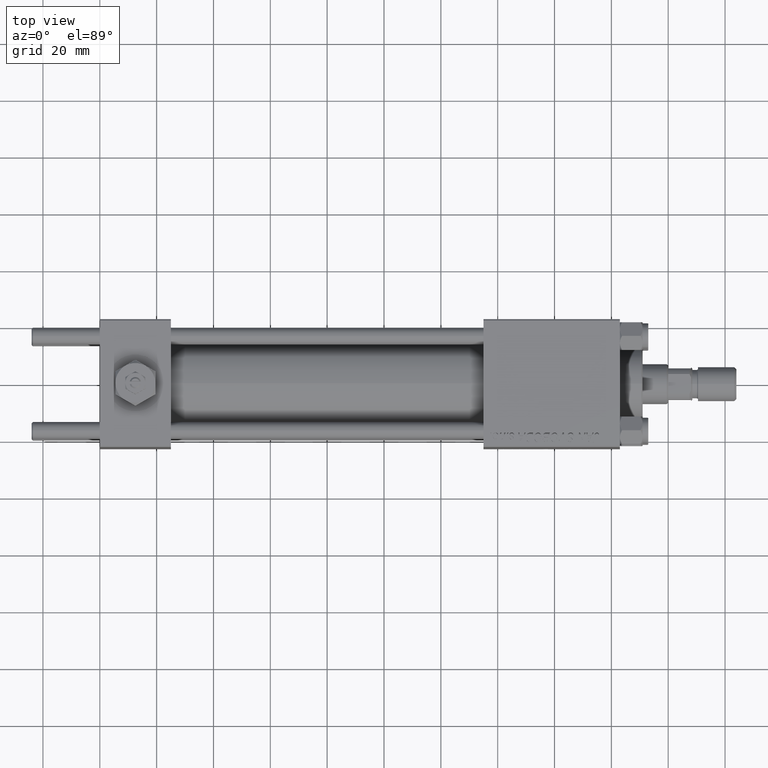
[diagram: clean part render]
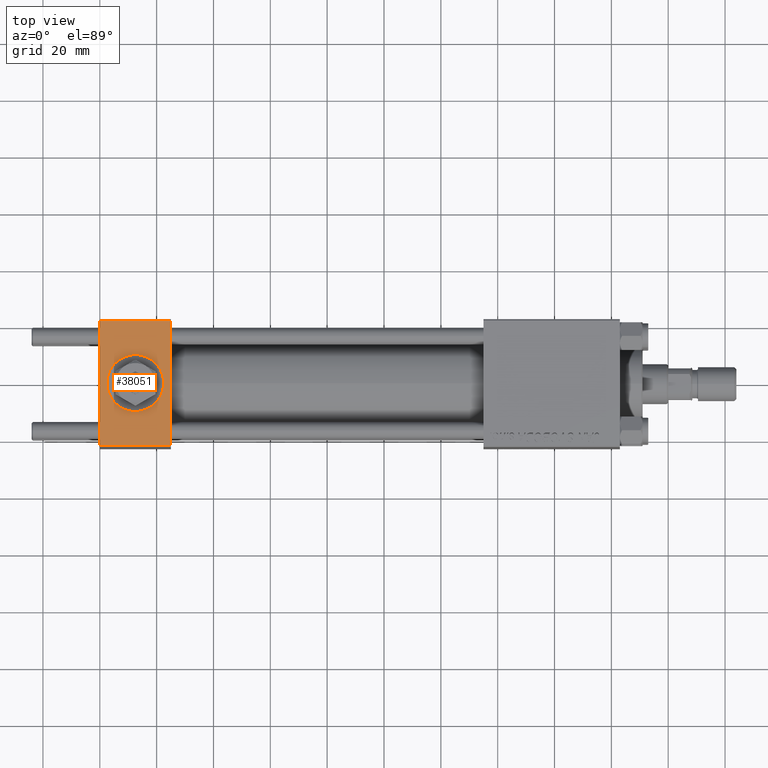
[diagram: same view with one face highlighted and labeled with its STEP entity id]
A machine part, top view. The second image highlights one B-rep face of the part: STEP entity #38051.
In plain terms, the highlighted planar face has unit normal (0, 0, -1).
Its self-contained STEP definition (entity closure, byte-faithful):
#146 = VERTEX_POINT ( 'NONE', #9226 ) ;
#447 = VECTOR ( 'NONE', #21025, 1000.000000000000000 ) ;
#496 = CARTESIAN_POINT ( 'NONE',  ( 25.00000000000000000, 22.50000000000000000, 22.50000000000000355 ) ) ;
#1013 = LINE ( 'NONE', #17580, #447 ) ;
#1362 = AXIS2_PLACEMENT_3D ( 'NONE', #35577, #31624, #47678 ) ;
#2153 = ORIENTED_EDGE ( 'NONE', *, *, #31511, .F. ) ;
#3281 = EDGE_LOOP ( 'NONE', ( #3507, #42439 ) ) ;
#3408 = FACE_BOUND ( 'NONE', #3281, .T. ) ;
#3507 = ORIENTED_EDGE ( 'NONE', *, *, #30375, .F. ) ;
#4366 = ORIENTED_EDGE ( 'NONE', *, *, #8892, .T. ) ;
#4749 = CARTESIAN_POINT ( 'NONE',  ( 22.50000000000000000, -1.734723475976807094E-15, 22.50000000000000000 ) ) ;
#5336 = DIRECTION ( 'NONE',  ( 0.000000000000000000, -1.000000000000000000, -7.709882115452476934E-17 ) ) ;
#7519 = CARTESIAN_POINT ( 'NONE',  ( 12.50000000000000000, -1.734723475976807094E-15, 22.50000000000000000 ) ) ;
#8425 = DIRECTION ( 'NONE',  ( 1.000000000000000000, 0.000000000000000000, 0.000000000000000000 ) ) ;
#8892 = EDGE_CURVE ( 'NONE', #22160, #20146, #40814, .T. ) ;
#9226 = CARTESIAN_POINT ( 'NONE',  ( 2.500000000000003997, -5.100766768294543310E-16, 22.50000000000000000 ) ) ;
#9365 = CARTESIAN_POINT ( 'NONE',  ( 25.00000000000000000, 21.99999999999999289, 22.50000000000000355 ) ) ;
#13503 = LINE ( 'NONE', #13756, #24456 ) ;
#13756 = CARTESIAN_POINT ( 'NONE',  ( 0.000000000000000000, 22.50000000000000000, 22.50000000000000355 ) ) ;
#15111 = CIRCLE ( 'NONE', #35307, 9.999999999999998224 ) ;
#16296 = LINE ( 'NONE', #496, #26524 ) ;
#17580 = CARTESIAN_POINT ( 'NONE',  ( 0.000000000000000000, 21.99999999999999289, 22.50000000000000355 ) ) ;
#19340 = CARTESIAN_POINT ( 'NONE',  ( 0.000000000000000000, -21.99999999999997868, 22.50000000000000000 ) ) ;
#20146 = VERTEX_POINT ( 'NONE', #32126 ) ;
#21025 = DIRECTION ( 'NONE',  ( -1.000000000000000000, 0.000000000000000000, 0.000000000000000000 ) ) ;
#22160 = VERTEX_POINT ( 'NONE', #19340 ) ;
#22650 = CARTESIAN_POINT ( 'NONE',  ( 25.00000000000000000, 22.50000000000000000, 22.50000000000000355 ) ) ;
#24057 = CIRCLE ( 'NONE', #1362, 9.999999999999998224 ) ;
#24456 = VECTOR ( 'NONE', #5336, 1000.000000000000000 ) ;
#25789 = VERTEX_POINT ( 'NONE', #34287 ) ;
#25988 = VERTEX_POINT ( 'NONE', #4749 ) ;
#26524 = VECTOR ( 'NONE', #32364, 1000.000000000000000 ) ;
#29476 = CARTESIAN_POINT ( 'NONE',  ( 25.00000000000000000, -21.99999999999999289, 22.50000000000000000 ) ) ;
#30299 = PLANE ( 'NONE',  #47635 ) ;
#30375 = EDGE_CURVE ( 'NONE', #25988, #146, #24057, .T. ) ;
#31209 = ORIENTED_EDGE ( 'NONE', *, *, #31676, .T. ) ;
#31511 = EDGE_CURVE ( 'NONE', #47992, #20146, #16296, .T. ) ;
#31624 = DIRECTION ( 'NONE',  ( 0.000000000000000000, 0.000000000000000000, 1.000000000000000000 ) ) ;
#31676 = EDGE_CURVE ( 'NONE', #47992, #25789, #1013, .T. ) ;
#32126 = CARTESIAN_POINT ( 'NONE',  ( 25.00000000000000000, -21.99999999999997868, 22.50000000000000000 ) ) ;
#32364 = DIRECTION ( 'NONE',  ( 0.000000000000000000, -1.000000000000000000, -7.709882115452476934E-17 ) ) ;
#32741 = VECTOR ( 'NONE', #8425, 1000.000000000000000 ) ;
#34287 = CARTESIAN_POINT ( 'NONE',  ( 0.000000000000000000, 21.99999999999999289, 22.50000000000000355 ) ) ;
#35307 = AXIS2_PLACEMENT_3D ( 'NONE', #7519, #50722, #38624 ) ;
#35577 = CARTESIAN_POINT ( 'NONE',  ( 12.50000000000000000, -1.734723475976807094E-15, 22.50000000000000000 ) ) ;
#38051 = ADVANCED_FACE ( 'NONE', ( #3408, #39230 ), #30299, .F. ) ;
#38624 = DIRECTION ( 'NONE',  ( 1.000000000000000000, 0.000000000000000000, 0.000000000000000000 ) ) ;
#38721 = DIRECTION ( 'NONE',  ( 0.000000000000000000, 7.709882115452476934E-17, -1.000000000000000000 ) ) ;
#39230 = FACE_OUTER_BOUND ( 'NONE', #50450, .T. ) ;
#40814 = LINE ( 'NONE', #29476, #32741 ) ;
#41732 = ORIENTED_EDGE ( 'NONE', *, *, #48308, .T. ) ;
#42439 = ORIENTED_EDGE ( 'NONE', *, *, #47026, .F. ) ;
#47026 = EDGE_CURVE ( 'NONE', #146, #25988, #15111, .T. ) ;
#47635 = AXIS2_PLACEMENT_3D ( 'NONE', #22650, #38721, #50561 ) ;
#47678 = DIRECTION ( 'NONE',  ( 1.000000000000000000, 0.000000000000000000, 0.000000000000000000 ) ) ;
#47992 = VERTEX_POINT ( 'NONE', #9365 ) ;
#48308 = EDGE_CURVE ( 'NONE', #25789, #22160, #13503, .T. ) ;
#50450 = EDGE_LOOP ( 'NONE', ( #41732, #4366, #2153, #31209 ) ) ;
#50561 = DIRECTION ( 'NONE',  ( 0.000000000000000000, 1.000000000000000000, 7.709882115452476934E-17 ) ) ;
#50722 = DIRECTION ( 'NONE',  ( 0.000000000000000000, 0.000000000000000000, 1.000000000000000000 ) ) ;